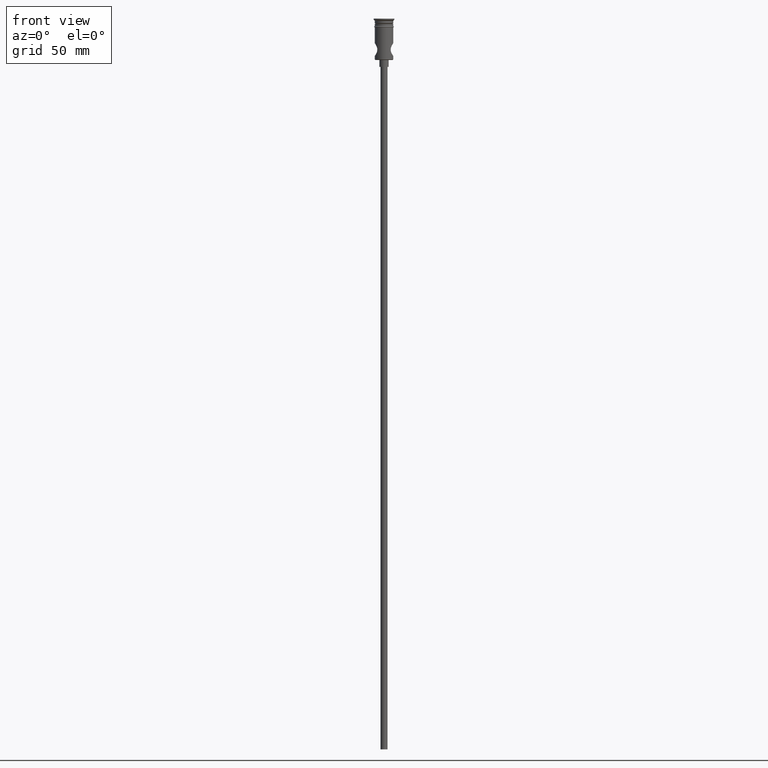
[diagram: clean part render]
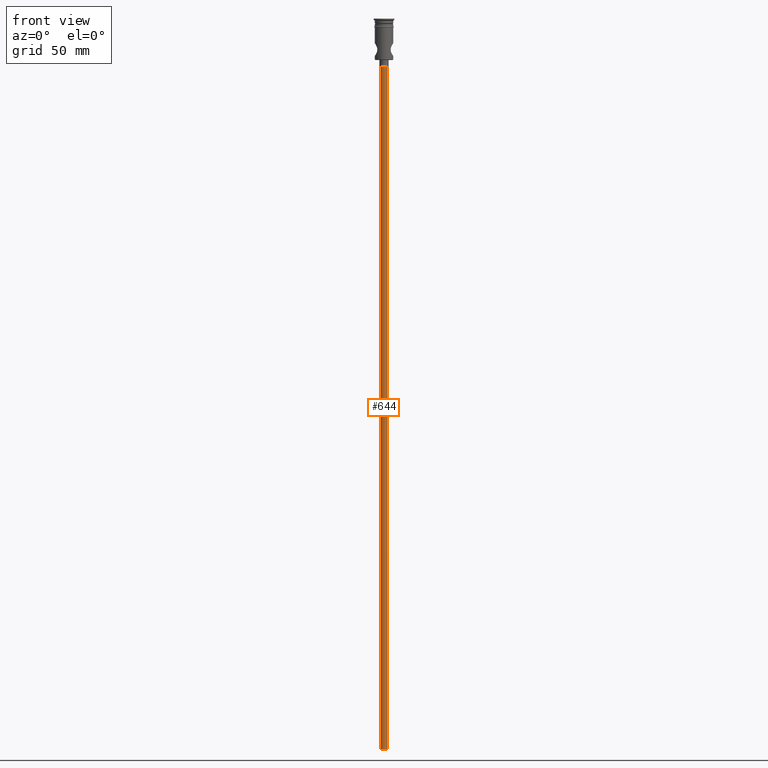
[diagram: same view with one face highlighted and labeled with its STEP entity id]
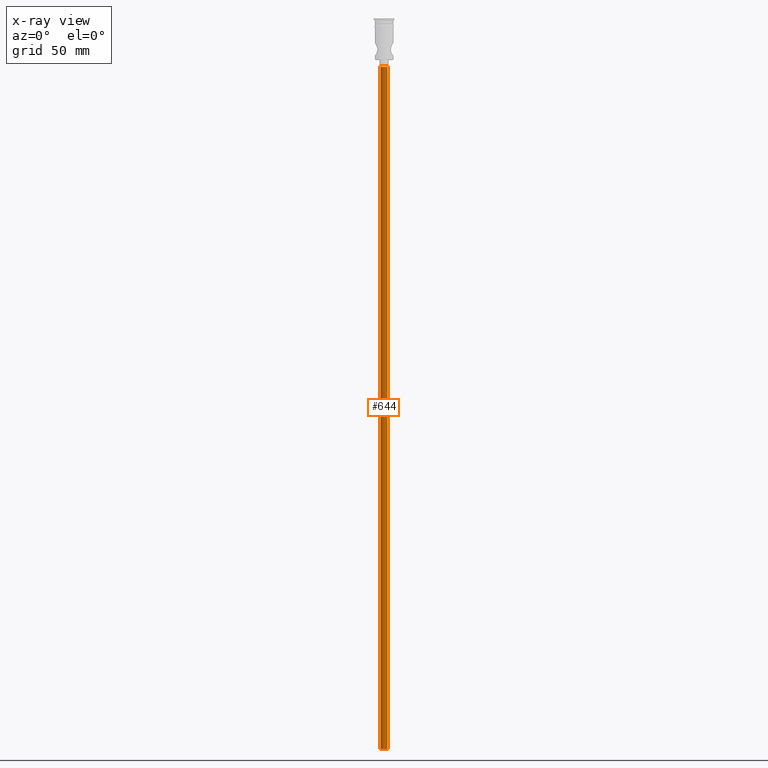
[diagram: x-ray of the same camera — body ghosted, the highlighted face saturated]
A machine part, front view. The second image highlights one B-rep face of the part: STEP entity #644.
The next image is the same camera in x-ray: the body ghosted, the highlighted face saturated — about 0% of this face is hidden behind the body in this view.
In plain terms, the highlighted cylindrical surface (edge-blend (fillet) strip) has radius 1.5 mm, axis along (-0, -0, 1).
Its self-contained STEP definition (entity closure, byte-faithful):
#1 = AXIS2_PLACEMENT_3D ( 'NONE', #1373, #496, #77 ) ;
#60 = CYLINDRICAL_SURFACE ( 'NONE', #1, 1.500000000000000222 ) ;
#77 = DIRECTION ( 'NONE',  ( 1.000000000000000000, 0.000000000000000000, 0.000000000000000000 ) ) ;
#96 = CIRCLE ( 'NONE', #1041, 1.500000000000000222 ) ;
#138 = CARTESIAN_POINT ( 'NONE',  ( 1.500000000000000222, 0.000000000000000000, -20.99999999999999645 ) ) ;
#139 = EDGE_CURVE ( 'NONE', #341, #865, #1375, .T. ) ;
#177 = VERTEX_POINT ( 'NONE', #822 ) ;
#181 = ORIENTED_EDGE ( 'NONE', *, *, #472, .T. ) ;
#274 = FACE_OUTER_BOUND ( 'NONE', #1226, .T. ) ;
#302 = DIRECTION ( 'NONE',  ( -0.000000000000000000, -0.000000000000000000, 1.000000000000000000 ) ) ;
#341 = VERTEX_POINT ( 'NONE', #836 ) ;
#387 = VERTEX_POINT ( 'NONE', #512 ) ;
#461 = VECTOR ( 'NONE', #1134, 1000.000000000000000 ) ;
#472 = EDGE_CURVE ( 'NONE', #865, #387, #649, .T. ) ;
#496 = DIRECTION ( 'NONE',  ( -0.000000000000000000, -0.000000000000000000, 1.000000000000000000 ) ) ;
#501 = CARTESIAN_POINT ( 'NONE',  ( 0.000000000000000000, 0.000000000000000000, -318.0000000000000000 ) ) ;
#512 = CARTESIAN_POINT ( 'NONE',  ( -1.500000000000000222, 1.836970198721030181E-16, -20.99999999999999645 ) ) ;
#579 = ORIENTED_EDGE ( 'NONE', *, *, #139, .T. ) ;
#619 = DIRECTION ( 'NONE',  ( -1.000000000000000000, 0.000000000000000000, 0.000000000000000000 ) ) ;
#644 = ADVANCED_FACE ( 'NONE', ( #274 ), #60, .T. ) ;
#649 = CIRCLE ( 'NONE', #669, 1.500000000000000222 ) ;
#669 = AXIS2_PLACEMENT_3D ( 'NONE', #806, #835, #619 ) ;
#685 = ORIENTED_EDGE ( 'NONE', *, *, #786, .F. ) ;
#786 = EDGE_CURVE ( 'NONE', #177, #387, #1294, .T. ) ;
#806 = CARTESIAN_POINT ( 'NONE',  ( 0.000000000000000000, 0.000000000000000000, -20.99999999999999645 ) ) ;
#822 = CARTESIAN_POINT ( 'NONE',  ( -1.500000000000000222, 1.836970198721030181E-16, -318.0000000000000000 ) ) ;
#835 = DIRECTION ( 'NONE',  ( 0.000000000000000000, 0.000000000000000000, -1.000000000000000000 ) ) ;
#836 = CARTESIAN_POINT ( 'NONE',  ( 1.500000000000000222, 0.000000000000000000, -318.0000000000000000 ) ) ;
#853 = CARTESIAN_POINT ( 'NONE',  ( -1.500000000000000222, 1.836970198721030181E-16, -318.0000000000000000 ) ) ;
#865 = VERTEX_POINT ( 'NONE', #138 ) ;
#903 = ORIENTED_EDGE ( 'NONE', *, *, #1370, .F. ) ;
#1041 = AXIS2_PLACEMENT_3D ( 'NONE', #501, #1053, #1362 ) ;
#1053 = DIRECTION ( 'NONE',  ( 0.000000000000000000, 0.000000000000000000, -1.000000000000000000 ) ) ;
#1134 = DIRECTION ( 'NONE',  ( -0.000000000000000000, -0.000000000000000000, 1.000000000000000000 ) ) ;
#1170 = VECTOR ( 'NONE', #302, 1000.000000000000000 ) ;
#1226 = EDGE_LOOP ( 'NONE', ( #685, #903, #579, #181 ) ) ;
#1264 = CARTESIAN_POINT ( 'NONE',  ( 1.500000000000000222, 0.000000000000000000, -318.0000000000000000 ) ) ;
#1294 = LINE ( 'NONE', #853, #1170 ) ;
#1362 = DIRECTION ( 'NONE',  ( -1.000000000000000000, 0.000000000000000000, 0.000000000000000000 ) ) ;
#1370 = EDGE_CURVE ( 'NONE', #341, #177, #96, .T. ) ;
#1373 = CARTESIAN_POINT ( 'NONE',  ( 0.000000000000000000, 0.000000000000000000, -318.0000000000000000 ) ) ;
#1375 = LINE ( 'NONE', #1264, #461 ) ;